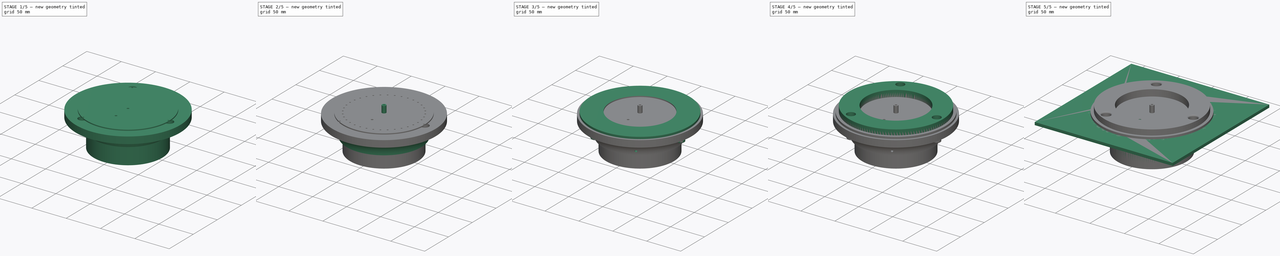
[diagram: build sequence overview — one tinted view per stage of 5, left to right]
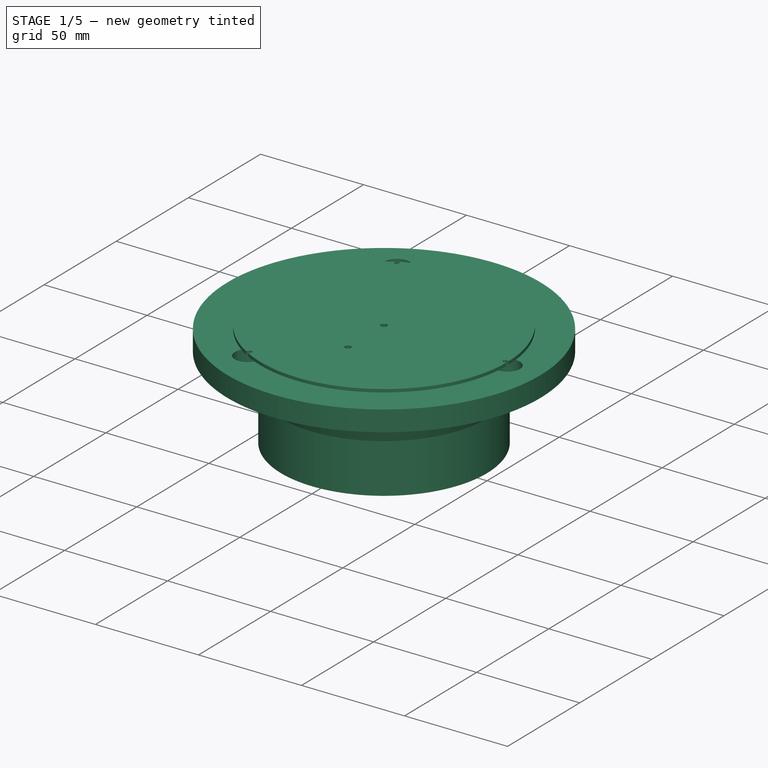
[diagram: stage 1 of 5 — iso view after this stage's code; geometry added in this stage tinted green]
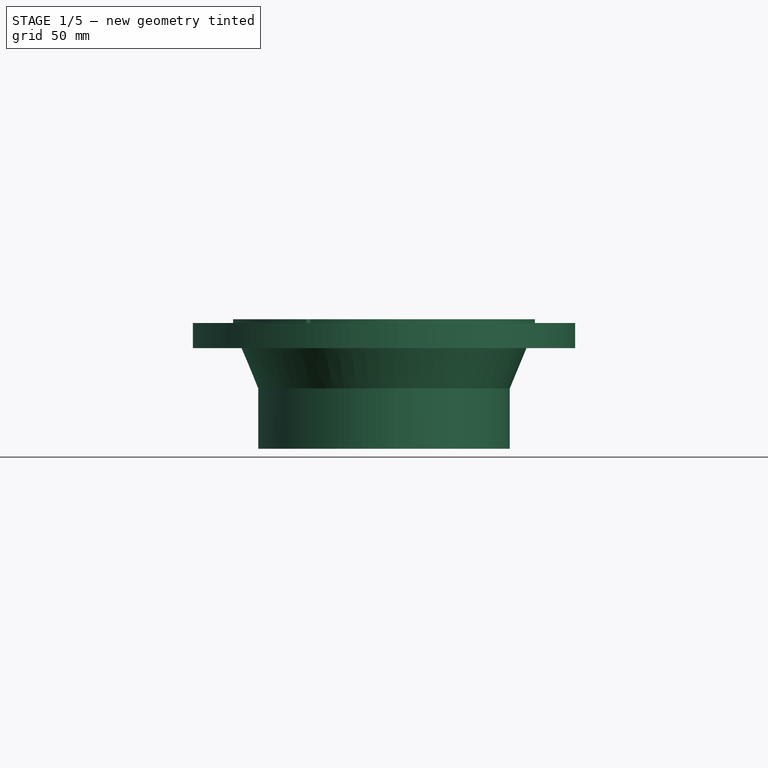
[diagram: stage 1 of 5 — front view after this stage's code; geometry added in this stage tinted green]
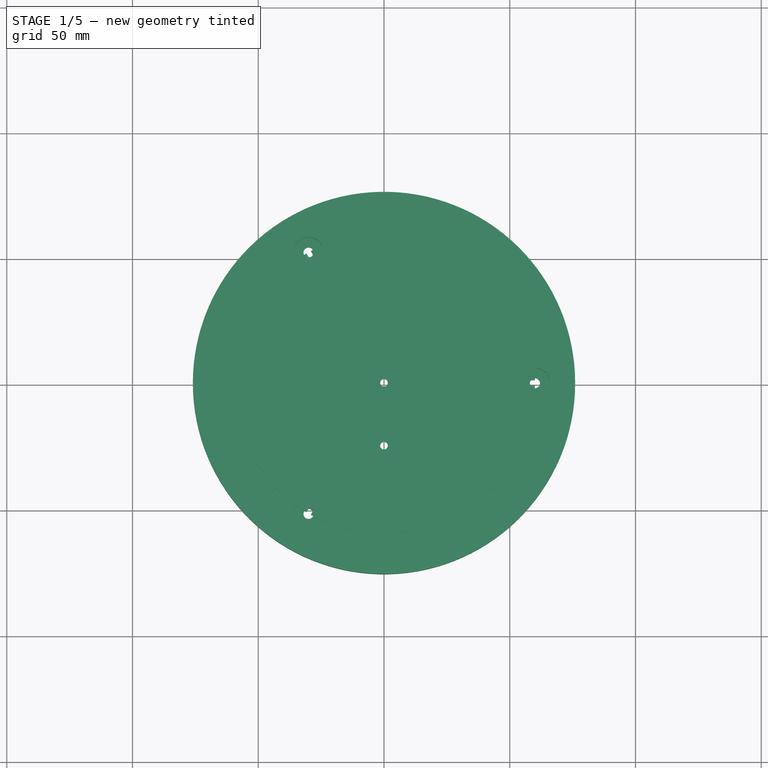
[diagram: stage 1 of 5 — top view after this stage's code; geometry added in this stage tinted green]
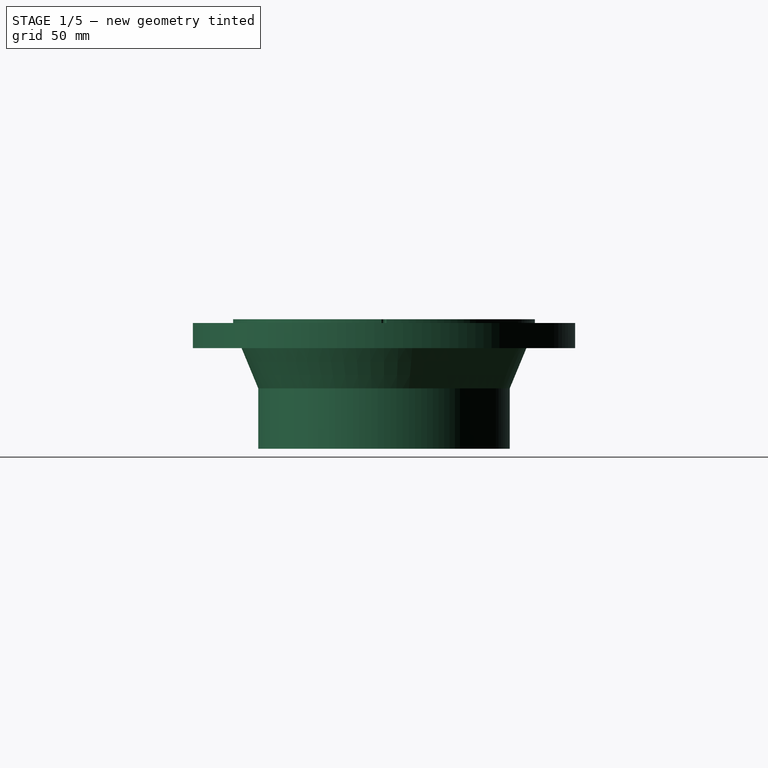
[diagram: stage 1 of 5 — right view after this stage's code; geometry added in this stage tinted green]
FCSTD DOCUMENT  (FreeCAD 0.20R29410 (Git))
Label: Lüfterhalterung
License: All rights reserved
LicenseURL: http://en.wikipedia.org/wiki/All_rights_reserved
objects: Sketcher::SketchObject×25, PartDesign::Pocket×12, PartDesign::Pad×11, PartDesign::PolarPattern×9, PartDesign::Body×8, PartDesign::Fillet×4, PartDesign::Revolution×2, App::FeaturePython×1
note: 100 computed .brp shape members not serialized (recipe doc carries the construction recipe); baked Part::Feature solids carry a one-line shape summary decoded from their .brp

FEATURE [PartDesign::Body] Body005  label="Stuetzring"
  Group = -> [Sketch012,Revolution,Sketch013,Pocket003,Sketch014,Pocket004,Sketch015,Pocket005,PolarPattern004,Sketch016,Pocket006,PolarPattern005]
  Origin = -> Origin005
  Placement = pos=(0,0,-4) rot=(0,0,1;0rad)
  Tip = -> PolarPattern005
  expr: .Placement.Base.z = -dd.ddScheibendicke
FEATURE [Sketcher::SketchObject] Sketch017
  FullyConstrained = true
  MapMode = 5
  Support = -> [XY_Plane006]
  expr: Constraints[5] = 100mm + dd.ddBolzenabstand * 2
  sketch-geometry (3):
    g0: Circle CenterX=0 CenterY=0 CenterZ=0 NormalX=0 NormalY=0 NormalZ=1 AngleXU=0 Radius=1.5
    g1: Circle CenterX=0 CenterY=-25 CenterZ=0 NormalX=0 NormalY=0 NormalZ=1 AngleXU=0 Radius=1.5
    g2: Circle CenterX=0 CenterY=0 CenterZ=0 NormalX=0 NormalY=0 NormalZ=1 AngleXU=0 Radius=60
  constraints (7):
    c: Coincident(g0,g-1)
    c: PointOnObject(g1,g-2)
    c: Equal(g0,g1)
    c: Diameter(g0) = 3
    c: Coincident(g2,g0)
    c: Diameter(g2) = 120
    c: DistanceY(g1,g0) = 25
FEATURE [PartDesign::Pad] Pad009
  Direction = (0,0,1)
  Length = 1.5
  Length2 = 10
  Profile = -> Sketch017
  ReferenceAxis = -> Sketch017 [N_Axis]
  Type = 0
FEATURE [Sketcher::SketchObject] Sketch018
  FullyConstrained = true
  MapMode = 5
  Support = -> [XY_Plane006]
  expr: Constraints[7] = 50mm + dd.ddBolzenabstand
  sketch-geometry (5):
    g0: ArcOfCircle CenterX=58.75 CenterY=0 CenterZ=0 NormalX=0 NormalY=0 NormalZ=1 AngleXU=0 Radius=1 StartAngle=1.5708 EndAngle=4.71239
    g1: ArcOfCircle CenterX=61.25 CenterY=0 CenterZ=0 NormalX=0 NormalY=0 NormalZ=1 AngleXU=0 Radius=1 StartAngle=4.71239 EndAngle=7.85398
    g2: LineSegment StartX=58.75 StartY=-1 StartZ=0 EndX=61.25 EndY=-1 EndZ=0
    g3: LineSegment StartX=61.25 StartY=1 StartZ=0 EndX=58.75 EndY=1 EndZ=0
    g4: GeomPoint X=60 Y=0 Z=0
  constraints (11):
    c: Tangent(g0,g2) = -1.5708
    c: Tangent(g2,g1) = -1.5708
    c: Tangent(g1,g3) = -1.5708
    c: Tangent(g3,g0) = -1.5708
    c: Equal(g0,g1)
    c: PointOnObject(g0,g-1)
    c: PointOnObject(g1,g-1)
    c: DistanceX(g-1,g4) = 60
    c: Symmetric(g0,g1,g4)
    c: DistanceX(g3,g3) = 2.5
    c: Diameter(g0) = 2
FEATURE [PartDesign::Pocket] Pocket007
  BaseFeature = -> Pad009
  Direction = (0,0,-1)
  Length = 5
  Length2 = 5
  Profile = -> Sketch018
  ReferenceAxis = -> Sketch018 [N_Axis]
  Reversed = true
  Type = 0
FEATURE [PartDesign::PolarPattern] PolarPattern006
  Angle = 360
  Axis = -> Sketch018 [N_Axis]
  BaseFeature = -> Pocket007
  Occurrences = 3
  Originals = -> [Pocket007]
  expr: Occurrences = dd.ddBolzen
FEATURE [PartDesign::Body] Body006  label="Bohrschablone"
  Group = -> [Sketch017,Pad009,Sketch018,Pocket007,PolarPattern006,Sketch019,Pocket008,PolarPattern007,Sketch020,Pad010]
  Origin = -> Origin006
  Tip = -> Pad010
FEATURE [Sketcher::SketchObject] Sketch021
  FullyConstrained = true
  MapMode = 5
  Placement = pos=(0,0,0) rot=(1,0,0;1.5708rad)
  Support = -> [XZ_Plane007]
  expr: Constraints[32] = dd.ddMaterialstaerke
  expr: Constraints[6] = dd.ddLuefterdurchmesser / 2 + dd.ddSpiel
  expr: Constraints[7] = dd.ddRand
  expr: Constraints[8] = dd.ddStuetzflansch
  sketch-geometry (14):
    g0: LineSegment StartX=51 StartY=0 StartZ=0 EndX=51 EndY=-13.3431 EndZ=0
    g1: LineSegment StartX=76 StartY=-10 StartZ=0 EndX=76 EndY=0 EndZ=0
    g2: LineSegment StartX=76 StartY=0 StartZ=0 EndX=51 EndY=0 EndZ=0
    g3: LineSegment StartX=56.6274 StartY=-10 StartZ=0 EndX=76 EndY=-10 EndZ=0
    g4: LineSegment StartX=51 StartY=-13.3431 StartZ=0 EndX=47 EndY=-23 EndZ=0
    g5: LineSegment StartX=47 StartY=-23 StartZ=0 EndX=47 EndY=-50 EndZ=0
    g6: LineSegment StartX=47 StartY=-50 StartZ=0 EndX=50 EndY=-50 EndZ=0
    g7: LineSegment StartX=50 StartY=-50 StartZ=0 EndX=50 EndY=-26 EndZ=0
    g8: LineSegment StartX=50 StartY=-26 StartZ=0 EndX=56.6274 EndY=-10 EndZ=0
    g9: LineSegment StartX=55.2426 StartY=-13.3431 StartZ=0 EndX=51 EndY=-13.3431 EndZ=0
    g10: LineSegment StartX=50 StartY=-26 StartZ=0 EndX=47 EndY=-23 EndZ=0
    g11: LineSegment StartX=51 StartY=-13.3431 StartZ=0 EndX=37.3431 EndY=-13.3431 EndZ=0
    g12: LineSegment StartX=47 StartY=-23 StartZ=0 EndX=37.3431 EndY=-13.3431 EndZ=0
    g13: GeomPoint X=49 Y=-18.1716 Z=0
  constraints (38):
    c: PointOnObject(g0,g-1)
    c: Vertical(g0)
    c: Vertical(g1)
    c: Coincident(g1,g2)
    c: Coincident(g2,g0)
    c: Horizontal(g2)
    c: DistanceX(g-1,g0) = 51
    c: DistanceX(g2,g2) = 25
    c: DistanceY(g1,g1) = 10
    c: Coincident(g3,g1)
    c: Horizontal(g3)
    c: Coincident(g0,g4)
    c: Coincident(g4,g5)
    c: Vertical(g5)
    c: Coincident(g5,g6)
    c: Horizontal(g6)
    c: Coincident(g6,g7)
    c: Vertical(g7)
    c: Coincident(g7,g8)
    c: Coincident(g9,g0)
    c: Coincident(g10,g7)
    c: Coincident(g10,g4)
    c: Coincident(g11,g0)
    c: Coincident(g12,g4)
    c: Coincident(g12,g11)
    c: Parallel(g8,g4)
    c: DistanceX(g-1,g6) = 50
    c: Symmetric(g4,g0,g13)
    c: Equal(g11,g12)
    c: Equal(g9,g10)
    c: DistanceY(g7,g7) = 24
    c: Horizontal(g11)
    c: DistanceX(g6,g6) = 3
    c: DistanceY(g6,g0) = 50
    c: Horizontal(g9)
    c: Coincident(g8,g3)
    c: Angle(g12,g11) = 0.785398
    c: Tangent(g12,g10)
FEATURE [PartDesign::Revolution] Revolution001
  Angle = 360
  Axis = (0,-2e-16,1)
  Base = (0,0,0)
  Placement = pos=(0,0,0) rot=(1,0,0;1.5708rad)
  Profile = -> Sketch021
  ReferenceAxis = -> Sketch021 [V_Axis]
  Reversed = true
FEATURE [Sketcher::SketchObject] Sketch022
  FullyConstrained = true
  MapMode = 5
  Support = -> [XY_Plane007]
  expr: Constraints[1] = 50mm + dd.ddBolzenabstand
  expr: Constraints[2] = dd.ddBolzendurchmesser
  sketch-geometry (1):
    g0: Circle CenterX=60 CenterY=0 CenterZ=0 NormalX=0 NormalY=0 NormalZ=1 AngleXU=0 Radius=6
  constraints (3):
    c: PointOnObject(g0,g-1)
    c: DistanceX(g-1,g0) = 60
    c: Diameter(g0) = 12
FEATURE [PartDesign::Pocket] Pocket009
  BaseFeature = -> Revolution001
  Direction = (0,0,-1)
  Length = 6
  Length2 = 5
  Placement = pos=(0,0,0) rot=(1,0,0;1.5708rad)
  Profile = -> Sketch022
  ReferenceAxis = -> Sketch022 [N_Axis]
  Type = 0
  expr: Length = dd.ddBolzenlaenge - dd.ddLuefterueberstand - dd.ddScheibendicke - dd.ddMaterialstaerke
FEATURE [Sketcher::SketchObject] Sketch023
  FullyConstrained = true
  MapMode = 5
  Support = -> [XY_Plane007]
  expr: Constraints[1] = 50mm + dd.ddBolzenabstand
  sketch-geometry (1):
    g0: Circle CenterX=60 CenterY=0 CenterZ=0 NormalX=0 NormalY=0 NormalZ=1 AngleXU=0 Radius=2
  constraints (3):
    c: PointOnObject(g0,g-1)
    c: DistanceX(g-1,g0) = 60
    c: Diameter(g0) = 4
FEATURE [PartDesign::Pocket] Pocket010
  BaseFeature = -> Pocket009
  Direction = (0,0,-1)
  Length = 5
  Length2 = 5
  Placement = pos=(0,0,0) rot=(1,0,0;1.5708rad)
  Profile = -> Sketch023
  ReferenceAxis = -> Sketch023 [N_Axis]
  Type = 1
FEATURE [Sketcher::SketchObject] Sketch024
  AttachmentOffset = pos=(0,0,-13) rot=(0,0,1;0rad)
  FullyConstrained = true
  MapMode = 5
  Placement = pos=(0,0,-13) rot=(0,0,1;0rad)
  Support = -> [XY_Plane007]
  expr: .AttachmentOffset.Base.z = -dd.ddStuetzflansch - dd.ddMaterialstaerke
  expr: Constraints[1] = 50mm + dd.ddBolzenabstand
  sketch-geometry (1):
    g0: Circle CenterX=60 CenterY=0 CenterZ=0 NormalX=0 NormalY=0 NormalZ=1 AngleXU=0 Radius=4
  constraints (3):
    c: PointOnObject(g0,g-1)
    c: DistanceX(g-1,g0) = 60
    c: Diameter(g0) = 8
FEATURE [PartDesign::Pocket] Pocket011
  BaseFeature = -> Pocket010
  Direction = (0,0,-1)
  Length = 12
  Length2 = 5
  Placement = pos=(0,0,0) rot=(1,0,0;1.5708rad)
  Profile = -> Sketch024
  ReferenceAxis = -> Sketch024 [N_Axis]
  Type = 0
FEATURE [PartDesign::PolarPattern] PolarPattern008
  Angle = 360
  Axis = -> Sketch022 [N_Axis]
  BaseFeature = -> Pocket011
  Occurrences = 3
  Originals = -> [Pocket009,Pocket010,Pocket011]
  Placement = pos=(0,0,0) rot=(1,0,0;1.5708rad)
  expr: Occurrences = dd.ddBolzen
FEATURE [PartDesign::Body] Body007  label="Schlauchadapter"
  Group = -> [Sketch021,Revolution001,Sketch022,Pocket009,Sketch023,Pocket010,Sketch024,Pocket011,PolarPattern008]
  Origin = -> Origin007
  Placement = pos=(0,0,-4) rot=(0,0,1;0rad)
  Tip = -> PolarPattern008
  expr: .Placement.Base.z = -dd.ddScheibendicke
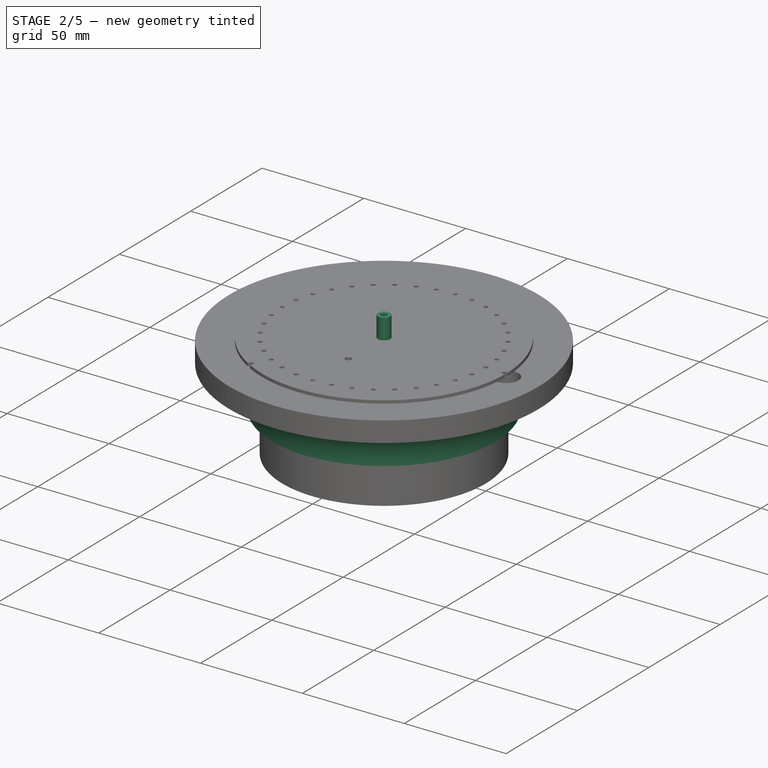
[diagram: stage 2 of 5 — iso view after this stage's code; geometry added in this stage tinted green]
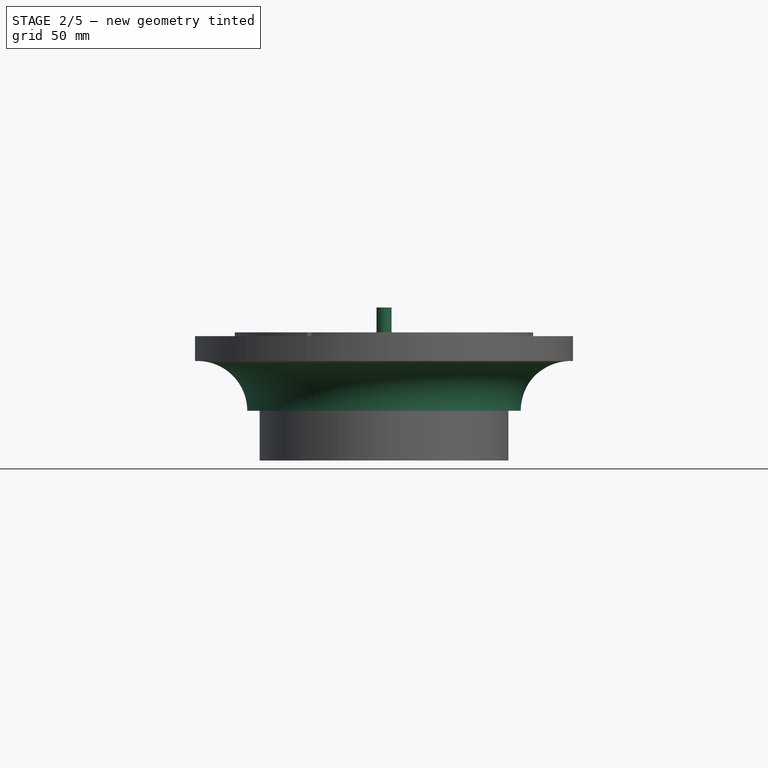
[diagram: stage 2 of 5 — front view after this stage's code; geometry added in this stage tinted green]
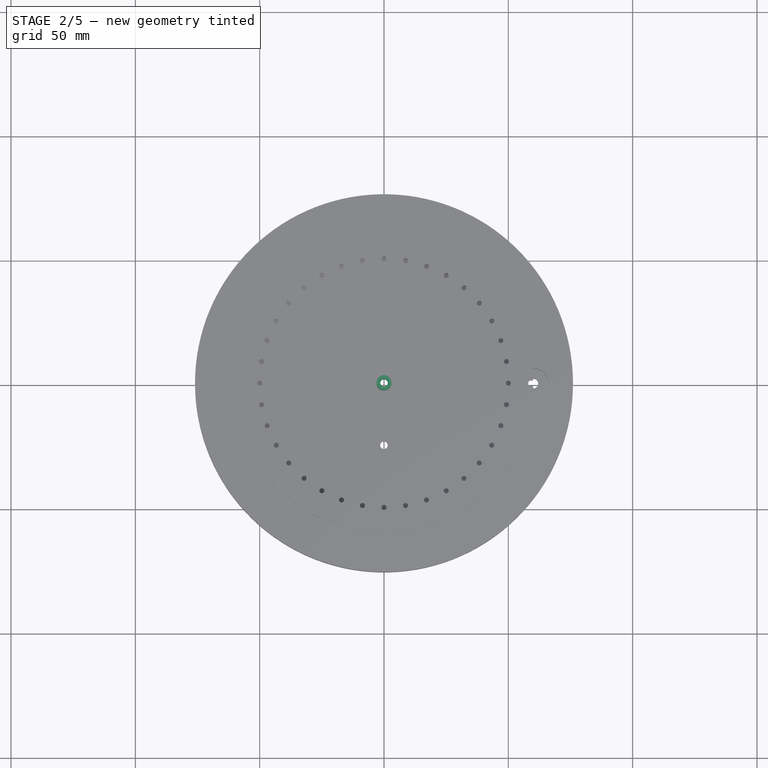
[diagram: stage 2 of 5 — top view after this stage's code; geometry added in this stage tinted green]
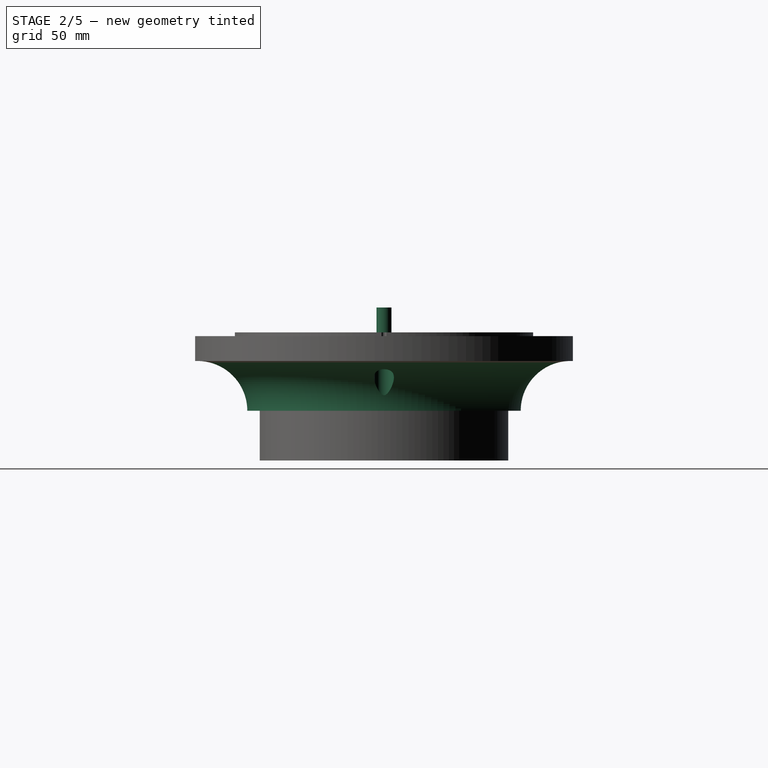
[diagram: stage 2 of 5 — right view after this stage's code; geometry added in this stage tinted green]
FEATURE [PartDesign::Body] Body004  label="Abdeckring"
  Group = -> [Sketch009,Pad006,Sketch010,Pad007,Sketch011,Pad008,PolarPattern003,Fillet001,Fillet002,Fillet003]
  Origin = -> Origin004
  Placement = pos=(0,0,12) rot=(0,0,1;0rad)
  Tip = -> Fillet003
  expr: .Placement.Base.z = dd.ddLuefterueberstand + dd.ddMaterialstaerke + 1mm
FEATURE [Sketcher::SketchObject] Sketch012
  FullyConstrained = true
  MapMode = 5
  Placement = pos=(0,0,0) rot=(1,0,0;1.5708rad)
  Support = -> [XZ_Plane005]
  expr: Constraints[10] = dd.ddStuetzflansch
  expr: Constraints[12] = dd.ddStuetzhoehe
  expr: Constraints[15] = dd.ddStuetzhoehe - dd.ddStuetzflansch
  expr: Constraints[8] = dd.ddLuefterdurchmesser / 2 + dd.ddSpiel
  expr: Constraints[9] = dd.ddRand
  sketch-geometry (6):
    g0: LineSegment StartX=51 StartY=0 StartZ=0 EndX=51 EndY=-30 EndZ=0
    g1: LineSegment StartX=51 StartY=-30 StartZ=0 EndX=55 EndY=-30 EndZ=0
    g2: LineSegment StartX=76 StartY=-10 StartZ=0 EndX=76 EndY=0 EndZ=0
    g3: LineSegment StartX=76 StartY=0 StartZ=0 EndX=51 EndY=0 EndZ=0
    g4: ArcOfCircle CenterX=75 CenterY=-30 CenterZ=0 NormalX=0 NormalY=0 NormalZ=1 AngleXU=0 Radius=20 StartAngle=1.5708 EndAngle=3.14159
    g5: LineSegment StartX=75 StartY=-10 StartZ=0 EndX=76 EndY=-10 EndZ=0
  constraints (19):
    c: PointOnObject(g0,g-1)
    c: Vertical(g0)
    c: Coincident(g0,g1)
    c: Horizontal(g1)
    c: Vertical(g2)
    c: Coincident(g2,g3)
    c: Coincident(g3,g0)
    c: Horizontal(g3)
    c: DistanceX(g-1,g0) = 51
    c: DistanceX(g3,g3) = 25
    c: DistanceY(g2,g2) = 10
    c: DistanceX(g1,g1) = 4
    c: DistanceY(g0,g0) = 30
    c: Coincident(g4,g1)
    c: Horizontal(g4,g1)
    c: Radius(g4) = 20
    c: Coincident(g5,g4)
    c: Coincident(g5,g2)
    c: Horizontal(g5)
FEATURE [PartDesign::Revolution] Revolution
  Angle = 360
  Axis = (0,-2e-16,1)
  Base = (0,0,0)
  Placement = pos=(0,0,0) rot=(1,0,0;1.5708rad)
  Profile = -> Sketch012
  ReferenceAxis = -> Sketch012 [V_Axis]
  Reversed = true
FEATURE [Sketcher::SketchObject] Sketch013
  FullyConstrained = true
  MapMode = 5
  Support = -> [XY_Plane005]
  expr: Constraints[1] = 50mm + dd.ddBolzenabstand
  expr: Constraints[2] = dd.ddBolzendurchmesser
  sketch-geometry (1):
    g0: Circle CenterX=60 CenterY=0 CenterZ=0 NormalX=0 NormalY=0 NormalZ=1 AngleXU=0 Radius=6
  constraints (3):
    c: PointOnObject(g0,g-1)
    c: DistanceX(g-1,g0) = 60
    c: Diameter(g0) = 12
FEATURE [PartDesign::Pocket] Pocket003
  BaseFeature = -> Revolution
  Direction = (0,0,-1)
  Length = 6
  Length2 = 5
  Placement = pos=(0,0,0) rot=(1,0,0;1.5708rad)
  Profile = -> Sketch013
  ReferenceAxis = -> Sketch013 [N_Axis]
  Type = 0
  expr: Length = dd.ddBolzenlaenge - dd.ddLuefterueberstand - dd.ddScheibendicke - dd.ddMaterialstaerke
FEATURE [Sketcher::SketchObject] Sketch014
  FullyConstrained = true
  MapMode = 5
  Support = -> [XY_Plane005]
  expr: Constraints[1] = 50mm + dd.ddBolzenabstand
  sketch-geometry (1):
    g0: Circle CenterX=60 CenterY=0 CenterZ=0 NormalX=0 NormalY=0 NormalZ=1 AngleXU=0 Radius=2
  constraints (3):
    c: PointOnObject(g0,g-1)
    c: DistanceX(g-1,g0) = 60
    c: Diameter(g0) = 4
FEATURE [PartDesign::Pocket] Pocket004
  BaseFeature = -> Pocket003
  Direction = (0,0,-1)
  Length = 5
  Length2 = 5
  Placement = pos=(0,0,0) rot=(1,0,0;1.5708rad)
  Profile = -> Sketch014
  ReferenceAxis = -> Sketch014 [N_Axis]
  Type = 1
FEATURE [Sketcher::SketchObject] Sketch015
  AttachmentOffset = pos=(0,0,-13) rot=(0,0,1;0rad)
  FullyConstrained = true
  MapMode = 5
  Placement = pos=(0,0,-13) rot=(0,0,1;0rad)
  Support = -> [XY_Plane005]
  expr: .AttachmentOffset.Base.z = -dd.ddStuetzflansch - dd.ddMaterialstaerke
  expr: Constraints[1] = 50mm + dd.ddBolzenabstand
  sketch-geometry (1):
    g0: Circle CenterX=60 CenterY=0 CenterZ=0 NormalX=0 NormalY=0 NormalZ=1 AngleXU=0 Radius=4
  constraints (3):
    c: PointOnObject(g0,g-1)
    c: DistanceX(g-1,g0) = 60
    c: Diameter(g0) = 8
FEATURE [PartDesign::Pocket] Pocket005
  BaseFeature = -> Pocket004
  Direction = (0,0,-1)
  Length = 12
  Length2 = 5
  Placement = pos=(0,0,0) rot=(1,0,0;1.5708rad)
  Profile = -> Sketch015
  ReferenceAxis = -> Sketch015 [N_Axis]
  Type = 0
FEATURE [Sketcher::SketchObject] Sketch019
  FullyConstrained = true
  MapMode = 5
  Support = -> [XY_Plane006]
  sketch-geometry (1):
    g0: Circle CenterX=50 CenterY=0 CenterZ=0 NormalX=0 NormalY=0 NormalZ=1 AngleXU=0 Radius=1
  constraints (3):
    c: PointOnObject(g0,g-1)
    c: Diameter(g0) = 2
    c: DistanceX(g-1,g0) = 50
FEATURE [PartDesign::Pocket] Pocket008
  BaseFeature = -> PolarPattern006
  Direction = (0,0,-1)
  Length = 5
  Length2 = 5
  Profile = -> Sketch019
  ReferenceAxis = -> Sketch019 [N_Axis]
  Reversed = true
  Type = 0
FEATURE [PartDesign::PolarPattern] PolarPattern007
  Angle = 360
  Axis = -> Sketch019 [N_Axis]
  BaseFeature = -> Pocket008
  Occurrences = 36
  Originals = -> [Pocket008]
FEATURE [Sketcher::SketchObject] Sketch020
  AttachmentOffset = pos=(0,0,1.5) rot=(0,0,1;0rad)
  FullyConstrained = true
  MapMode = 5
  Placement = pos=(0,0,1.5) rot=(0,0,1;0rad)
  Support = -> [XY_Plane006]
  sketch-geometry (2):
    g0: Circle CenterX=0 CenterY=0 CenterZ=0 NormalX=0 NormalY=0 NormalZ=1 AngleXU=0 Radius=3
    g1: Circle CenterX=0 CenterY=0 CenterZ=0 NormalX=0 NormalY=0 NormalZ=1 AngleXU=0 Radius=1.5
  constraints (4):
    c: Coincident(g0,g-1)
    c: Coincident(g1,g0)
    c: Diameter(g1) = 3
    c: Diameter(g0) = 6
FEATURE [PartDesign::Pad] Pad010
  BaseFeature = -> PolarPattern007
  Direction = (0,0,1)
  Length = 10
  Length2 = 10
  Profile = -> Sketch020
  ReferenceAxis = -> Sketch020 [N_Axis]
  Type = 0
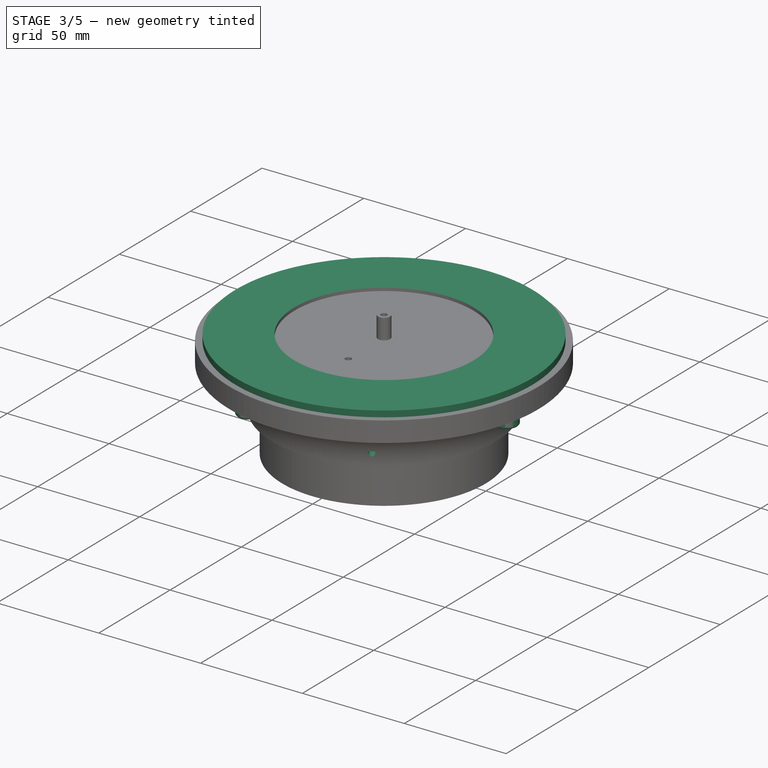
[diagram: stage 3 of 5 — iso view after this stage's code; geometry added in this stage tinted green]
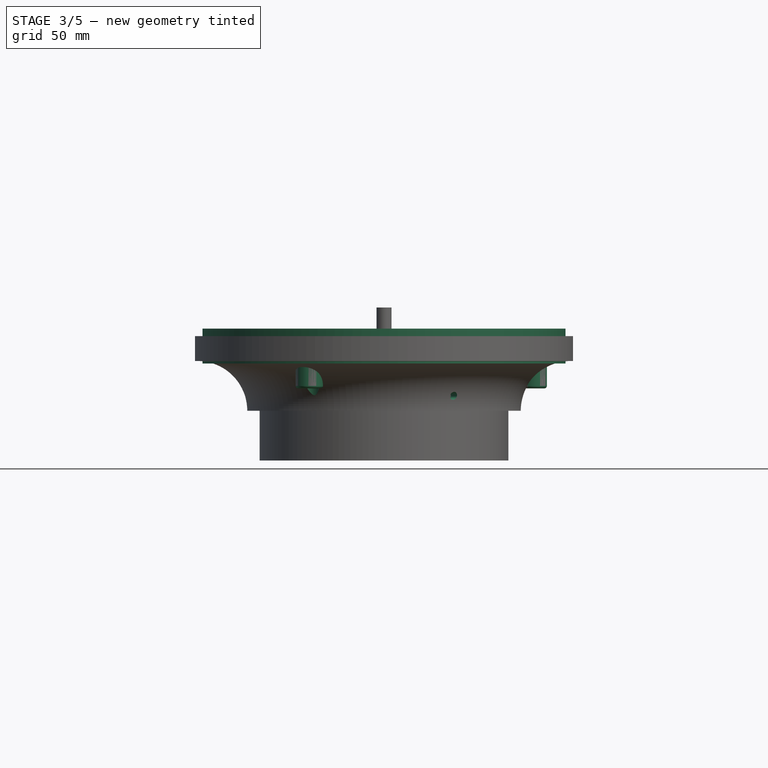
[diagram: stage 3 of 5 — front view after this stage's code; geometry added in this stage tinted green]
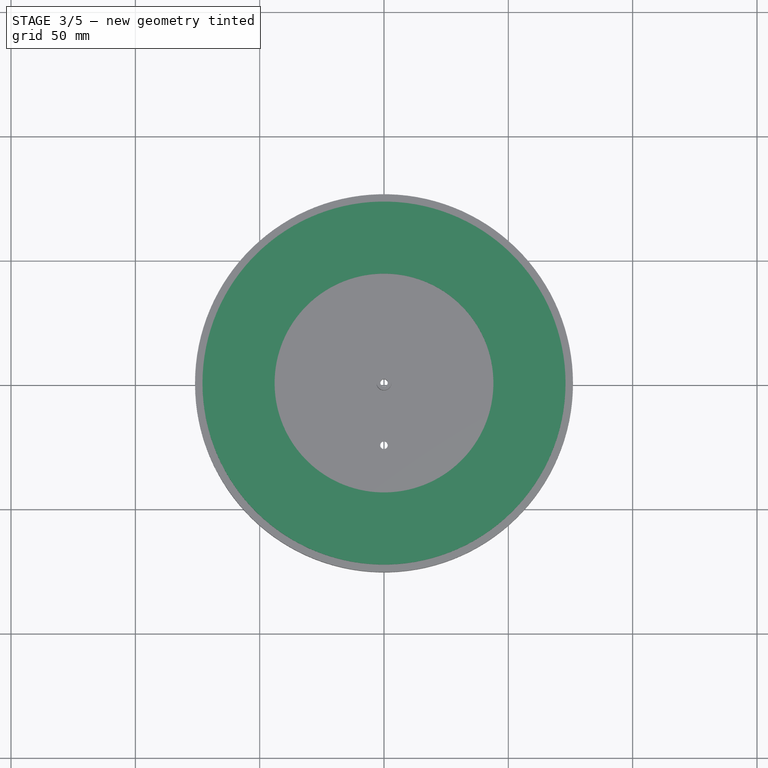
[diagram: stage 3 of 5 — top view after this stage's code; geometry added in this stage tinted green]
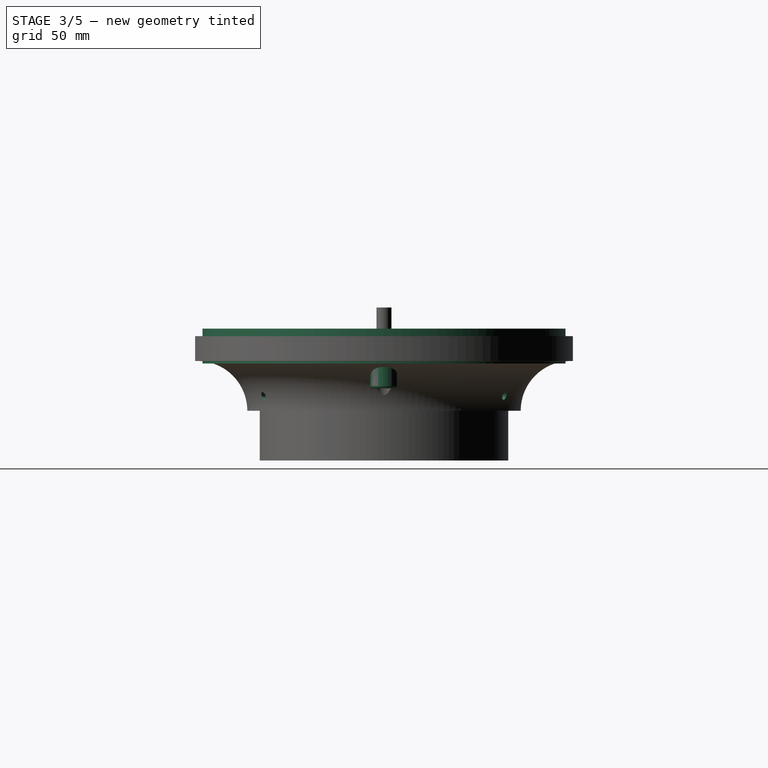
[diagram: stage 3 of 5 — right view after this stage's code; geometry added in this stage tinted green]
FEATURE [PartDesign::Body] Body003  label="Fliegengitter"
  Group = -> [Sketch007,Pad005,Sketch008,Pocket002,PolarPattern002]
  Origin = -> Origin003
  Placement = pos=(0,0,11) rot=(0,0,1;0rad)
  Tip = -> PolarPattern002
  expr: .Placement.Base.z = dd.ddLuefterueberstand + dd.ddMaterialstaerke
FEATURE [Sketcher::SketchObject] Sketch009
  FullyConstrained = true
  MapMode = 5
  Support = -> [XY_Plane004]
  expr: .Constraints.Aussenkante = <<Sketch004>>.Constraints.innen + (dd.ddRand + dd.ddMaterialstaerke + dd.ddSpiel) * 2
  expr: Constraints[2] = <<Sketch004>>.Constraints.innen
  sketch-geometry (2):
    g0: Circle CenterX=0 CenterY=0 CenterZ=0 NormalX=0 NormalY=0 NormalZ=1 AngleXU=0 Radius=73
    g1: Circle CenterX=0 CenterY=0 CenterZ=0 NormalX=0 NormalY=0 NormalZ=1 AngleXU=0 Radius=44
  constraints (4):
    c: Coincident(g0,g-1)
    c: Coincident(g1,g0)
    c: Diameter(g1) = 88
    c: Diameter(g0) = 146  'Aussenkante'
FEATURE [PartDesign::Pad] Pad006
  Direction = (0,0,1)
  Length = 3
  Length2 = 10
  Profile = -> Sketch009
  ReferenceAxis = -> Sketch009 [N_Axis]
  Type = 0
  expr: Length = dd.ddMaterialstaerke
FEATURE [Sketcher::SketchObject] Sketch010
  FullyConstrained = true
  MapMode = 5
  Support = -> [XY_Plane004]
  expr: Constraints[2] = <<Sketch009>>.Constraints.Aussenkante - dd.ddMaterialstaerke * 2
  expr: Constraints[3] = <<Sketch009>>.Constraints.Aussenkante
  sketch-geometry (2):
    g0: Circle CenterX=0 CenterY=0 CenterZ=0 NormalX=0 NormalY=0 NormalZ=1 AngleXU=0 Radius=73
    g1: Circle CenterX=0 CenterY=0 CenterZ=0 NormalX=0 NormalY=0 NormalZ=1 AngleXU=0 Radius=70
  constraints (4):
    c: Coincident(g0,g-1)
    c: Coincident(g1,g0)
    c: Diameter(g1) = 140
    c: Diameter(g0) = 146
FEATURE [PartDesign::Pad] Pad007
  BaseFeature = -> Pad006
  Direction = (0,0,1)
  Length = 11
  Length2 = 10
  Profile = -> Sketch010
  ReferenceAxis = -> Sketch010 [N_Axis]
  Reversed = true
  Type = 0
  expr: Length = dd.ddLuefterueberstand + dd.ddMaterialstaerke
FEATURE [Sketcher::SketchObject] Sketch011
  FullyConstrained = true
  MapMode = 5
  Support = -> [XY_Plane004]
  expr: Constraints[2] = 50mm + dd.ddBolzenabstand
  expr: Constraints[3] = dd.ddBolzendurchmesser - dd.ddSpiel
  expr: Constraints[4] = dd.ddBolzenbohrung
  sketch-geometry (2):
    g0: Circle CenterX=60 CenterY=0 CenterZ=0 NormalX=0 NormalY=0 NormalZ=1 AngleXU=0 Radius=5.5
    g1: Circle CenterX=60 CenterY=0 CenterZ=0 NormalX=0 NormalY=0 NormalZ=1 AngleXU=0 Radius=2.8
  constraints (5):
    c: PointOnObject(g0,g-1)
    c: Coincident(g1,g0)
    c: DistanceX(g-1,g0) = 60
    c: Diameter(g0) = 11
    c: Diameter(g1) = 5.6
FEATURE [PartDesign::Pad] Pad008
  BaseFeature = -> Pad007
  Direction = (0,0,1)
  Length = 21
  Length2 = 10
  Profile = -> Sketch011
  ReferenceAxis = -> Sketch011 [N_Axis]
  Reversed = true
  Type = 0
  expr: Length = dd.ddBolzenlaenge
FEATURE [PartDesign::PolarPattern] PolarPattern003
  Angle = 360
  Axis = -> Sketch011 [N_Axis]
  BaseFeature = -> Pad008
  Occurrences = 3
  Originals = -> [Pad008]
  expr: Occurrences = dd.ddBolzen
FEATURE [PartDesign::Body] Body002  label="Aussenkranz"
  Group = -> [Sketch003,Pad002,Sketch004,Sketch005,Pad003,Pad004,Sketch006,Pocket001,PolarPattern001,Fillet]
  Origin = -> Origin002
  Tip = -> Fillet
FEATURE [PartDesign::Fillet] Fillet001
  Base = -> PolarPattern003 [Edge16,Edge18,Edge20]
  BaseFeature = -> PolarPattern003
  Radius = 1
  SupportTransform = false
  UseAllEdges = false
FEATURE [PartDesign::PolarPattern] PolarPattern004
  Angle = 360
  Axis = -> Sketch013 [N_Axis]
  BaseFeature = -> Pocket005
  Occurrences = 3
  Originals = -> [Pocket003,Pocket004,Pocket005]
  Placement = pos=(0,0,0) rot=(1,0,0;1.5708rad)
  expr: Occurrences = dd.ddBolzen
FEATURE [Sketcher::SketchObject] Sketch016
  AttachmentOffset = pos=(0,-24,0) rot=(0,1,0;1.0472rad)
  FullyConstrained = true
  MapMode = 5
  Placement = pos=(5.3e-15,-5.3e-15,-24) rot=(0.186157,0.694747,0.694747;2.77349rad)
  Support = -> [YZ_Plane005]
  expr: .AttachmentOffset.Base.y = -dd.ddStuetzhoehe - dd.ddScheibendicke + 10mm
  expr: .AttachmentOffset.Rotation.Pitch = 360 / dd.ddBolzen / 2
  sketch-geometry (1):
    g0: Circle CenterX=0 CenterY=0 CenterZ=0 NormalX=0 NormalY=0 NormalZ=1 AngleXU=0 Radius=1.6
  constraints (2):
    c: Coincident(g0,g-1)
    c: Diameter(g0) = 3.2
FEATURE [PartDesign::Pocket] Pocket006
  BaseFeature = -> PolarPattern004
  Direction = (-0.5,-0.866025,-1e-16)
  Length = 5
  Length2 = 5
  Placement = pos=(0,0,0) rot=(1,0,0;1.5708rad)
  Profile = -> Sketch016
  ReferenceAxis = -> Sketch016 [N_Axis]
  Reversed = true
  Type = 1
FEATURE [PartDesign::PolarPattern] PolarPattern005
  Angle = 360
  Axis = -> Z_Axis005
  BaseFeature = -> Pocket006
  Occurrences = 3
  Originals = -> [Pocket006]
  Placement = pos=(0,0,0) rot=(1,0,0;1.5708rad)
  expr: Occurrences = dd.ddBolzen
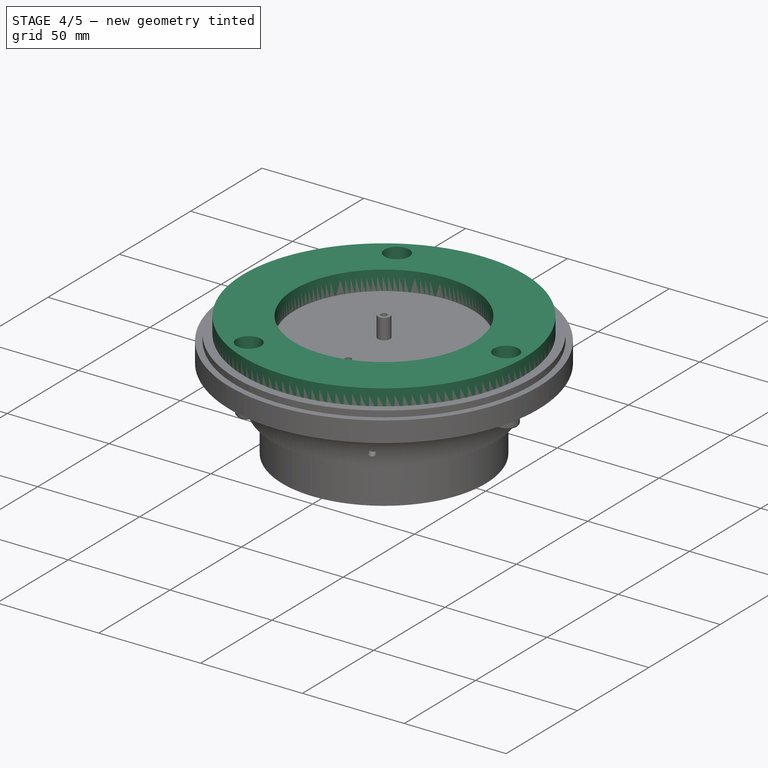
[diagram: stage 4 of 5 — iso view after this stage's code; geometry added in this stage tinted green]
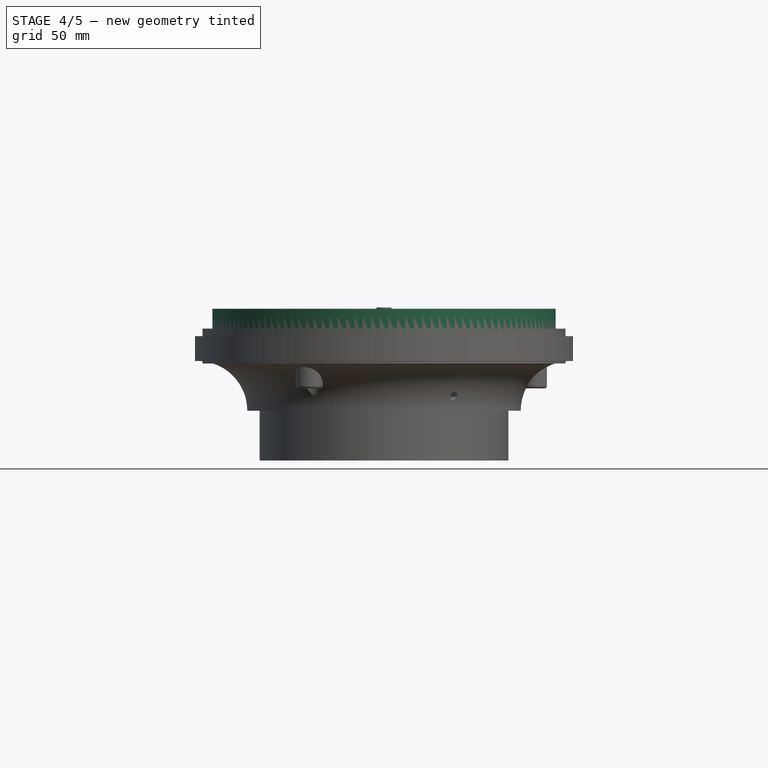
[diagram: stage 4 of 5 — front view after this stage's code; geometry added in this stage tinted green]
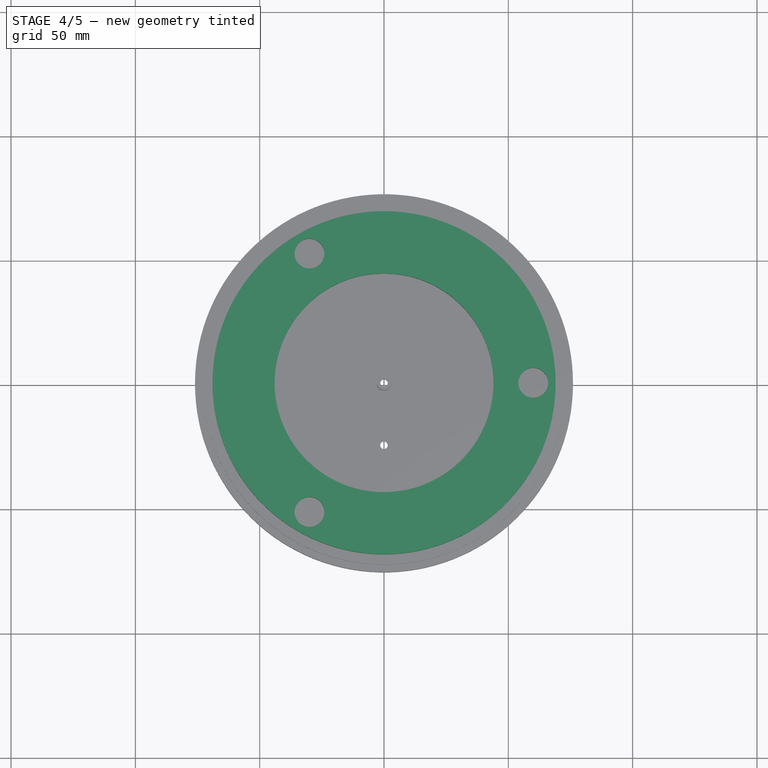
[diagram: stage 4 of 5 — top view after this stage's code; geometry added in this stage tinted green]
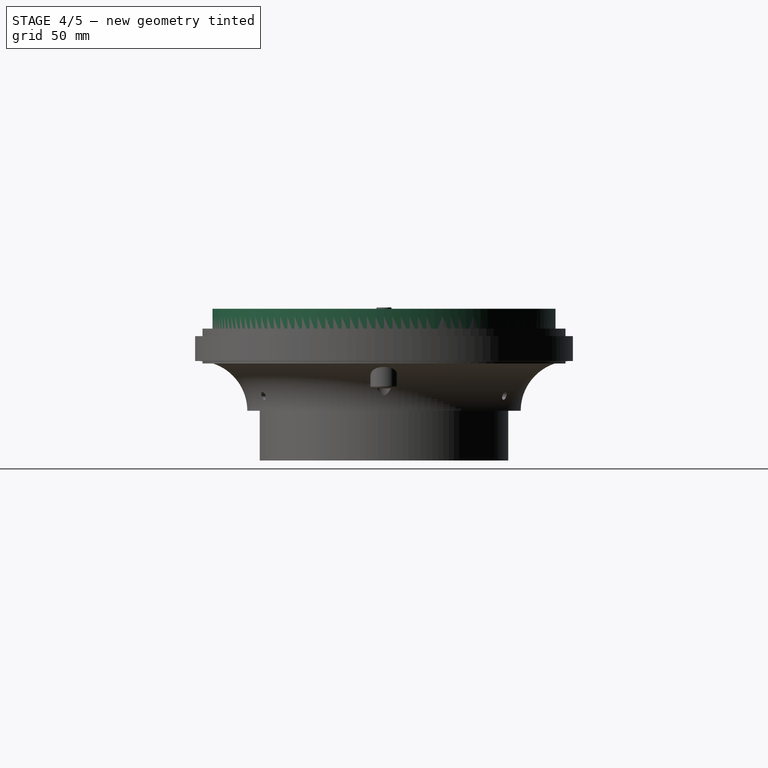
[diagram: stage 4 of 5 — right view after this stage's code; geometry added in this stage tinted green]
FEATURE [PartDesign::Body] Body001  label="Scheibe"
  Group = -> [Sketch001,Pad001,Sketch002,Pocket,PolarPattern]
  Origin = -> Origin001
  Tip = -> PolarPattern
FEATURE [Sketcher::SketchObject] Sketch003
  FullyConstrained = true
  MapMode = 5
  Support = -> [XY_Plane002]
  expr: Constraints[3] = 100mm - (dd.ddLuefterwand + dd.ddMaterialstaerke) * 2 + dd.ddRand * 2
  sketch-geometry (2):
    g0: Circle CenterX=0 CenterY=0 CenterZ=0 NormalX=0 NormalY=0 NormalZ=1 AngleXU=0 Radius=69
    g1: Circle CenterX=0 CenterY=0 CenterZ=0 NormalX=0 NormalY=0 NormalZ=1 AngleXU=0 Radius=50
  constraints (4):
    c: Coincident(g0,g-1)
    c: Coincident(g1,g0)
    c: Diameter(g1) = 100
    c: Diameter(g0) = 138
FEATURE [PartDesign::Pad] Pad002
  Direction = (0,0,1)
  Length = 8
  Length2 = 10
  Profile = -> Sketch003
  ReferenceAxis = -> Sketch003 [N_Axis]
  Type = 0
  expr: Length = dd.ddLuefterueberstand
FEATURE [Sketcher::SketchObject] Sketch004
  AttachmentOffset = pos=(0,0,8) rot=(0,0,1;0rad)
  FullyConstrained = true
  MapMode = 5
  Placement = pos=(0,0,8) rot=(0,0,1;0rad)
  Support = -> [XY_Plane002]
  expr: .AttachmentOffset.Base.z = dd.ddLuefterueberstand
  expr: .Constraints.aussen = dd.ddLuefterdurchmesser - 2 * dd.ddLuefterwand
  expr: .Constraints.innen = .Constraints.aussen - dd.ddMaterialstaerke * 2
  sketch-geometry (2):
    g0: Circle CenterX=0 CenterY=0 CenterZ=0 NormalX=0 NormalY=0 NormalZ=1 AngleXU=0 Radius=47
    g1: Circle CenterX=0 CenterY=0 CenterZ=0 NormalX=0 NormalY=0 NormalZ=1 AngleXU=0 Radius=44
  constraints (4):
    c: Coincident(g0,g-1)
    c: Coincident(g1,g0)
    c: Diameter(g0) = 94  'aussen'
    c: Diameter(g1) = 88  'innen'
FEATURE [Sketcher::SketchObject] Sketch005
  AttachmentOffset = pos=(0,0,8) rot=(0,0,1;0rad)
  FullyConstrained = true
  MapMode = 5
  Placement = pos=(0,0,8) rot=(0,0,1;0rad)
  Support = -> [XY_Plane002]
  expr: .AttachmentOffset.Base.z = dd.ddLuefterueberstand
  expr: Constraints[2] = <<Sketch004>>.Constraints.innen
  expr: Constraints[3] = <<Sketch004>>.Constraints.innen + dd.ddRand * 2
  sketch-geometry (2):
    g0: Circle CenterX=0 CenterY=0 CenterZ=0 NormalX=0 NormalY=0 NormalZ=1 AngleXU=0 Radius=69
    g1: Circle CenterX=0 CenterY=0 CenterZ=0 NormalX=0 NormalY=0 NormalZ=1 AngleXU=0 Radius=44
  constraints (4):
    c: Coincident(g0,g-1)
    c: Coincident(g1,g0)
    c: Diameter(g1) = 88
    c: Diameter(g0) = 138
FEATURE [PartDesign::Pad] Pad003
  BaseFeature = -> Pad002
  Direction = (0,0,1)
  Length = 3
  Length2 = 10
  Profile = -> Sketch005
  ReferenceAxis = -> Sketch005 [N_Axis]
  Type = 0
  expr: Length = dd.ddMaterialstaerke
FEATURE [PartDesign::Pad] Pad004
  BaseFeature = -> Pad003
  Direction = (0,0,1)
  Length = 8
  Length2 = 10
  Profile = -> Sketch004
  ReferenceAxis = -> Sketch004 [N_Axis]
  Reversed = true
  Type = 0
  expr: Length = dd.ddLueftereindringtiefe
FEATURE [Sketcher::SketchObject] Sketch006
  AttachmentOffset = pos=(0,0,11) rot=(0,0,1;0rad)
  FullyConstrained = true
  MapMode = 5
  Placement = pos=(0,0,11) rot=(0,0,1;0rad)
  Support = -> [XY_Plane002]
  expr: .AttachmentOffset.Base.z = dd.ddLuefterueberstand + dd.ddMaterialstaerke
  expr: Constraints[1] = dd.ddBolzenabstand + 50mm
  expr: Constraints[2] = dd.ddBolzendurchmesser
  sketch-geometry (1):
    g0: Circle CenterX=60 CenterY=0 CenterZ=0 NormalX=0 NormalY=0 NormalZ=1 AngleXU=0 Radius=6
  constraints (3):
    c: PointOnObject(g0,g-1)
    c: DistanceX(g-1,g0) = 60
    c: Diameter(g0) = 12
FEATURE [PartDesign::Pocket] Pocket001
  BaseFeature = -> Pad004
  Direction = (0,0,-1)
  Length = 5
  Length2 = 5
  Profile = -> Sketch006
  ReferenceAxis = -> Sketch006 [N_Axis]
  Type = 1
FEATURE [PartDesign::PolarPattern] PolarPattern001
  Angle = 360
  Axis = -> Sketch006 [N_Axis]
  BaseFeature = -> Pocket001
  Occurrences = 3
  Originals = -> [Pocket001]
  expr: Occurrences = dd.ddBolzen
FEATURE [PartDesign::Fillet] Fillet002
  Base = -> Fillet001 [Edge3,Edge9,Edge8]
  BaseFeature = -> Fillet001
  Radius = 1
  SupportTransform = false
  UseAllEdges = false
FEATURE [PartDesign::Fillet] Fillet003
  Base = -> Fillet002 [Edge14]
  BaseFeature = -> Fillet002
  Radius = 1
  SupportTransform = false
  UseAllEdges = false
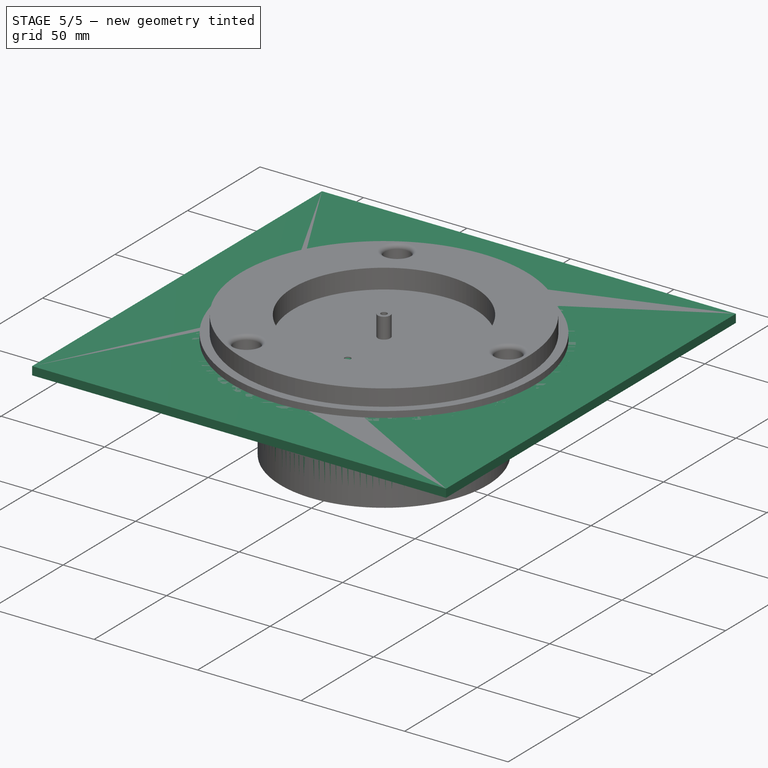
[diagram: stage 5 of 5 — iso view after this stage's code; geometry added in this stage tinted green]
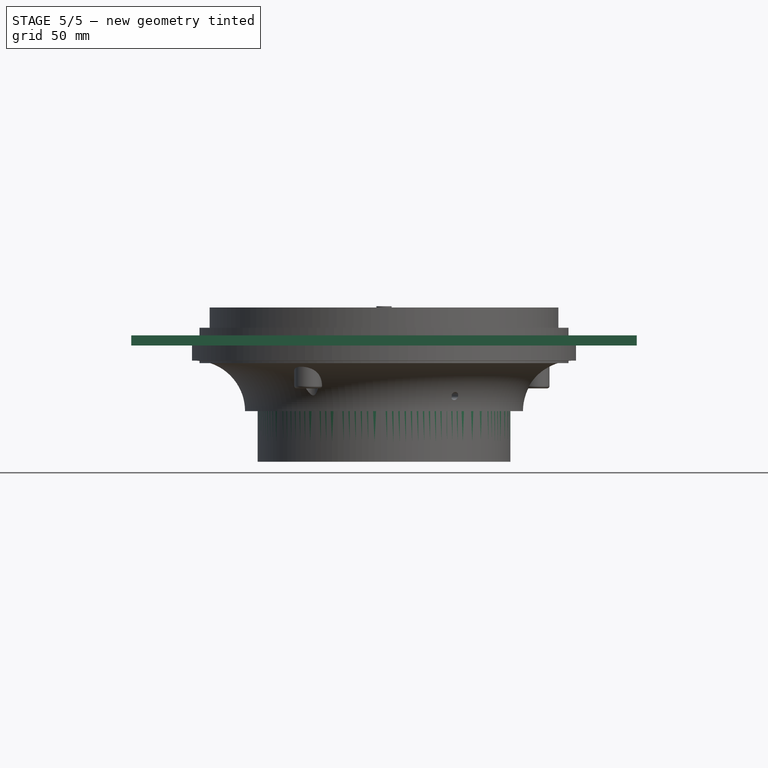
[diagram: stage 5 of 5 — front view after this stage's code; geometry added in this stage tinted green]
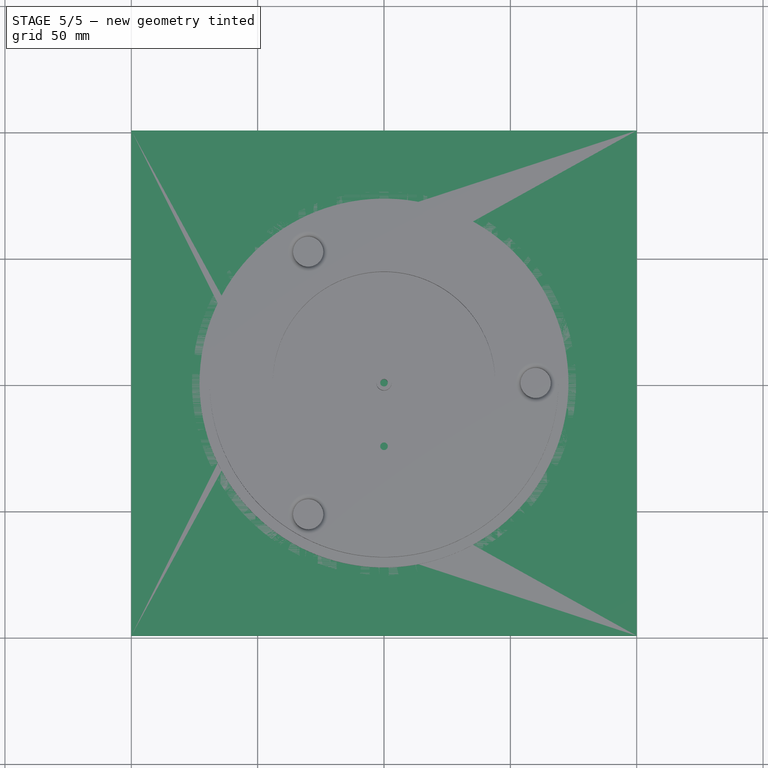
[diagram: stage 5 of 5 — top view after this stage's code; geometry added in this stage tinted green]
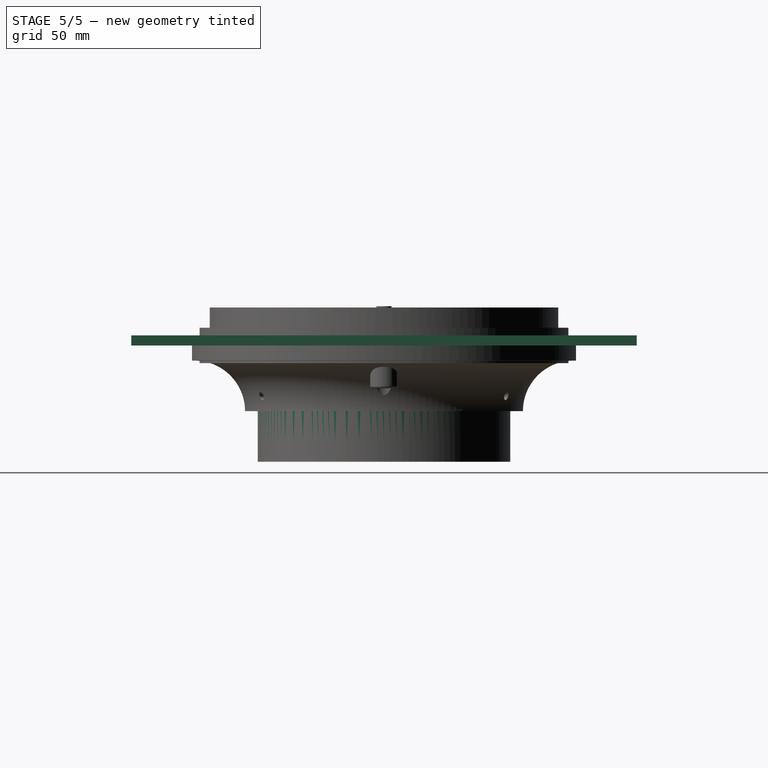
[diagram: stage 5 of 5 — right view after this stage's code; geometry added in this stage tinted green]
FEATURE [Sketcher::SketchObject] Sketch
  FullyConstrained = true
  MapMode = 5
  Support = -> [XY_Plane]
  expr: Constraints[1] = dd.ddLuefterdurchmesser
  expr: Constraints[3] = dd.ddLuefterdurchmesser - 2 * dd.ddLuefterwand
  sketch-geometry (2):
    g0: Circle CenterX=0 CenterY=0 CenterZ=0 NormalX=0 NormalY=0 NormalZ=1 AngleXU=0 Radius=50
    g1: Circle CenterX=0 CenterY=0 CenterZ=0 NormalX=0 NormalY=0 NormalZ=1 AngleXU=0 Radius=47
  constraints (4):
    c: Coincident(g0,g-1)
    c: Diameter(g0) = 100
    c: Coincident(g1,g0)
    c: Diameter(g1) = 94
FEATURE [App::FeaturePython] dd  # WARN: FeaturePython — macro-defined, semantics opaque (R4)
  DynamicData = Created with DynamicData (v2.46) workbench. | This is a simple container object built | for holding custom properties.
  ddBolzen = 3
  ddBolzenabstand = 10
  ddBolzenbohrung = 5.6
  ddBolzendurchmesser = 12
  ddBolzenlaenge = 21
  ddLuefterdurchmesser = 100
  ddLueftereindringtiefe = 8
  ddLuefterstutzen = 50
  ddLuefterueberstand = 8
  ddLuefterwand = 3
  ddMaterialstaerke = 3
  ddRand = 25
  ddScheibendicke = 4
  ddSpiel = 1
  ddStuetzflansch = 10
  ddStuetzhoehe = 30
  expr: ddBolzenlaenge = ddLuefterueberstand + ddScheibendicke + ddStuetzflansch - ddSpiel
  expr: ddLuefterwand = 2mm + ddSpiel
FEATURE [PartDesign::Pad] Pad
  Direction = (0,0,1)
  Length = 8
  Length2 = 42
  Profile = -> Sketch
  ReferenceAxis = -> Sketch [N_Axis]
  Type = 4
  expr: Length = dd.ddLuefterueberstand
  expr: Length2 = dd.ddLuefterstutzen - dd.ddLuefterueberstand
FEATURE [PartDesign::Body] Body  label="Luefter"
  Group = -> [Sketch,Pad]
  Origin = -> Origin
  Tip = -> Pad
FEATURE [Sketcher::SketchObject] Sketch001
  FullyConstrained = true
  MapMode = 5
  Support = -> [XY_Plane001]
  sketch-geometry (5):
    g0: LineSegment StartX=-100 StartY=100 StartZ=0 EndX=100 EndY=100 EndZ=0
    g1: LineSegment StartX=100 StartY=100 StartZ=0 EndX=100 EndY=-100 EndZ=0
    g2: LineSegment StartX=100 StartY=-100 StartZ=0 EndX=-100 EndY=-100 EndZ=0
    g3: LineSegment StartX=-100 StartY=-100 StartZ=0 EndX=-100 EndY=100 EndZ=0
    g4: Circle CenterX=0 CenterY=0 CenterZ=0 NormalX=0 NormalY=0 NormalZ=1 AngleXU=0 Radius=50
  constraints (13):
    c: Coincident(g0,g1)
    c: Coincident(g1,g2)
    c: Coincident(g2,g3)
    c: Coincident(g3,g0)
    c: Horizontal(g0)
    c: Horizontal(g2)
    c: Vertical(g1)
    c: Vertical(g3)
    c: Symmetric(g0,g1,g-1)
    c: Equal(g0,g3)
    c: DistanceX(g0,g0) = 200
    c: Coincident(g4,g-1)
    c: Diameter(g4) = 100
FEATURE [PartDesign::Pad] Pad001
  Direction = (0,0,1)
  Length = 4
  Length2 = 10
  Profile = -> Sketch001
  ReferenceAxis = -> Sketch001 [N_Axis]
  Reversed = true
  Type = 0
  expr: Length = dd.ddScheibendicke
FEATURE [Sketcher::SketchObject] Sketch002
  FullyConstrained = true
  MapMode = 5
  Support = -> [XY_Plane001]
  expr: Constraints[1] = 50mm + dd.ddBolzenabstand
  expr: Constraints[2] = dd.ddBolzendurchmesser
  sketch-geometry (1):
    g0: Circle CenterX=60 CenterY=0 CenterZ=0 NormalX=0 NormalY=0 NormalZ=1 AngleXU=0 Radius=6
  constraints (3):
    c: PointOnObject(g0,g-1)
    c: DistanceX(g-1,g0) = 60
    c: Diameter(g0) = 12
FEATURE [PartDesign::Pocket] Pocket
  BaseFeature = -> Pad001
  Direction = (0,0,-1)
  Length = 5
  Length2 = 5
  Profile = -> Sketch002
  ReferenceAxis = -> Sketch002 [N_Axis]
  Type = 1
FEATURE [PartDesign::PolarPattern] PolarPattern
  Angle = 360
  Axis = -> Sketch002 [N_Axis]
  BaseFeature = -> Pocket
  Occurrences = 3
  Originals = -> [Pocket]
  expr: Occurrences = dd.ddBolzen
FEATURE [Sketcher::SketchObject] Sketch007
  FullyConstrained = true
  MapMode = 5
  Support = -> [XY_Plane003]
  expr: Constraints[1] = <<Sketch004>>.Constraints.innen + 2 * dd.ddRand
  sketch-geometry (1):
    g0: Circle CenterX=0 CenterY=0 CenterZ=0 NormalX=0 NormalY=0 NormalZ=1 AngleXU=0 Radius=69
  constraints (2):
    c: Coincident(g0,g-1)
    c: Diameter(g0) = 138
FEATURE [PartDesign::Pad] Pad005
  Direction = (0,0,1)
  Length = 1
  Length2 = 10
  Profile = -> Sketch007
  ReferenceAxis = -> Sketch007 [N_Axis]
  Type = 0
FEATURE [Sketcher::SketchObject] Sketch008
  FullyConstrained = true
  MapMode = 5
  Support = -> [XY_Plane003]
  expr: Constraints[1] = 50mm + dd.ddBolzenabstand
  expr: Constraints[2] = dd.ddBolzendurchmesser
  sketch-geometry (1):
    g0: Circle CenterX=60 CenterY=0 CenterZ=0 NormalX=0 NormalY=0 NormalZ=1 AngleXU=0 Radius=6
  constraints (3):
    c: PointOnObject(g0,g-1)
    c: DistanceX(g-1,g0) = 60
    c: Diameter(g0) = 12
FEATURE [PartDesign::Pocket] Pocket002
  BaseFeature = -> Pad005
  Direction = (0,0,-1)
  Length = 5
  Length2 = 5
  Profile = -> Sketch008
  ReferenceAxis = -> Sketch008 [N_Axis]
  Reversed = true
  Type = 1
FEATURE [PartDesign::PolarPattern] PolarPattern002
  Angle = 360
  Axis = -> Sketch008 [N_Axis]
  BaseFeature = -> Pocket002
  Occurrences = 3
  Originals = -> [Pocket002]
  expr: Occurrences = dd.ddBolzen
FEATURE [PartDesign::Fillet] Fillet
  Base = -> PolarPattern001 [Edge10,Edge16,Edge14]
  BaseFeature = -> PolarPattern001
  Radius = 2
  SupportTransform = false
  UseAllEdges = false
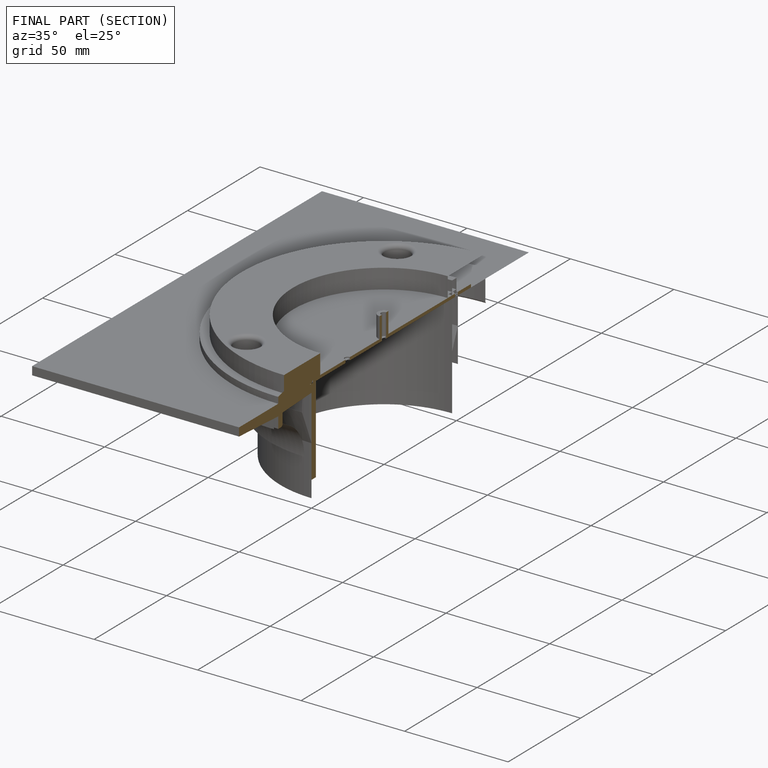
[diagram: finished part — half-section view (interior)]
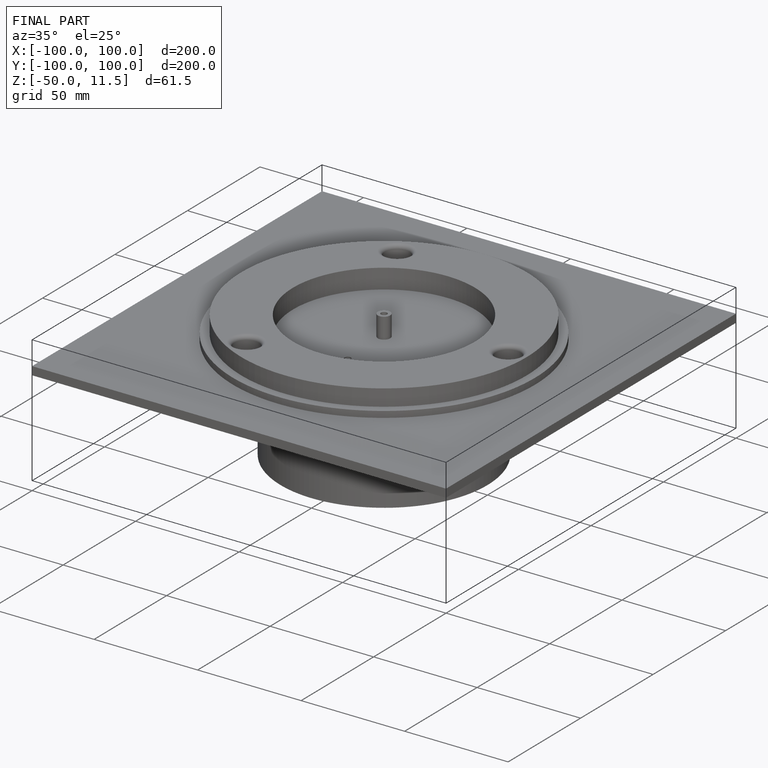
[diagram: finished part — iso view with bounding-box wireframe]
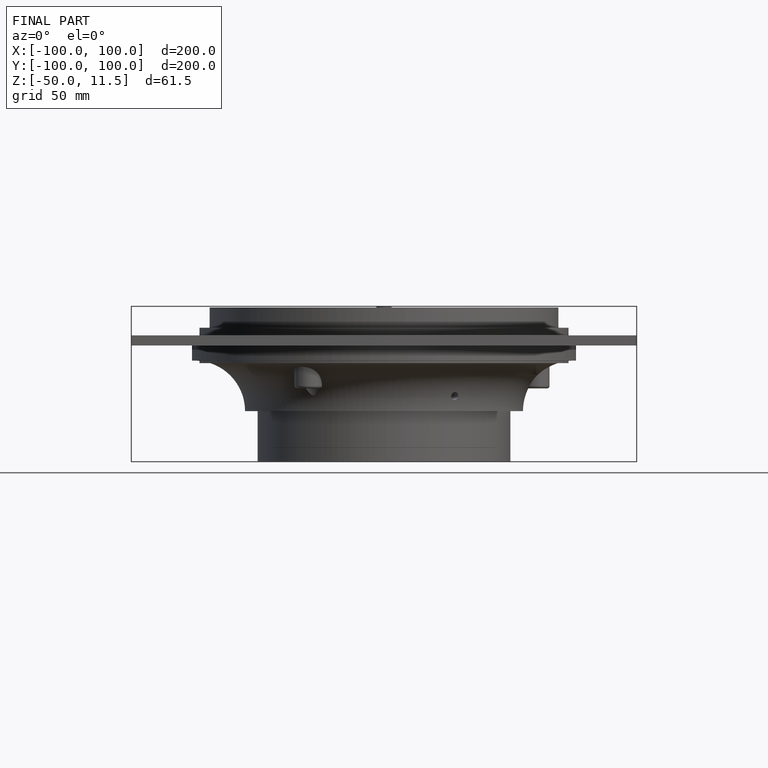
[diagram: finished part — front view with bounding-box wireframe]
